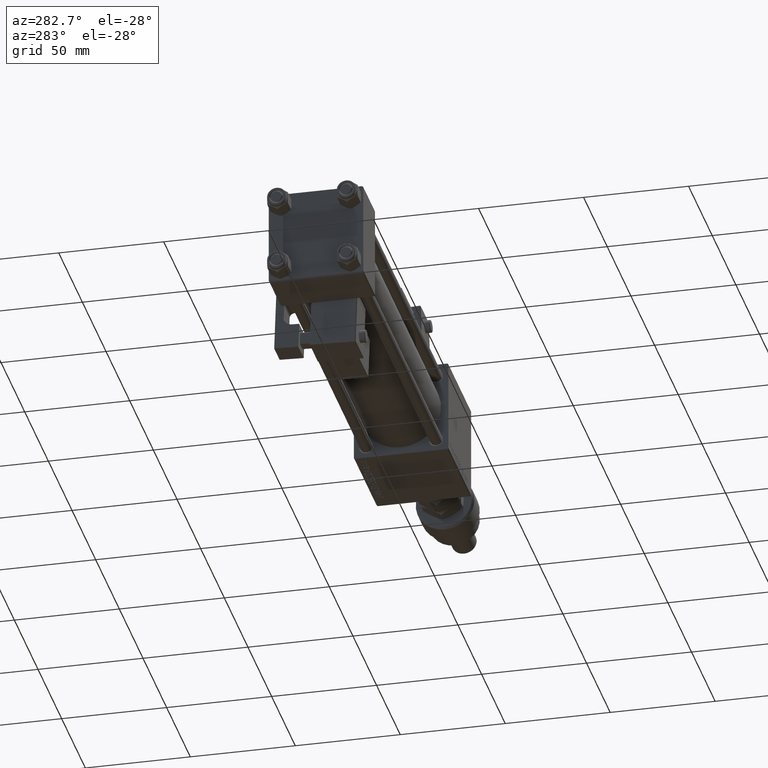
[diagram: clean part render]
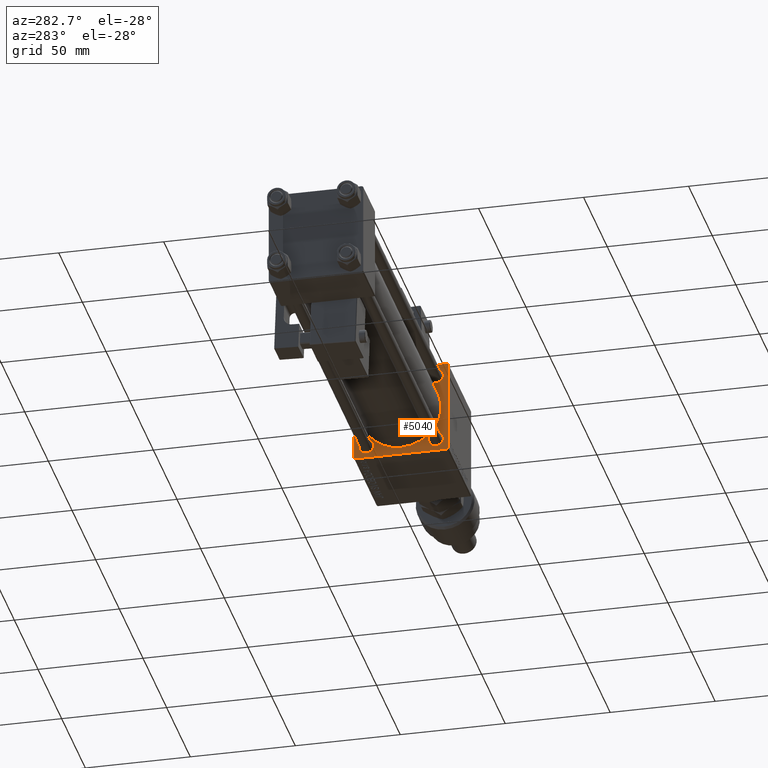
[diagram: same view with one face highlighted and labeled with its STEP entity id]
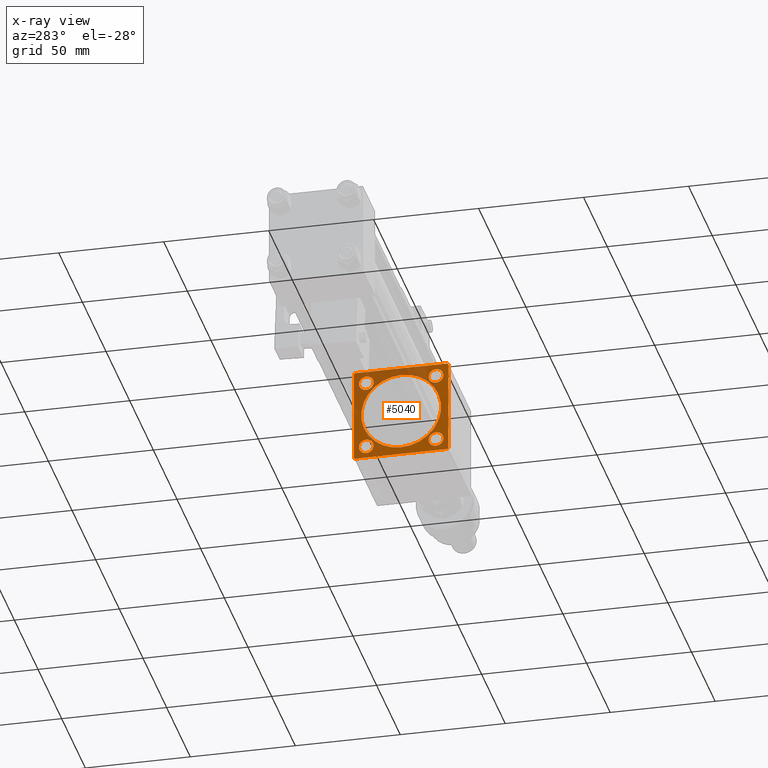
[diagram: x-ray of the same camera — body ghosted, the highlighted face saturated]
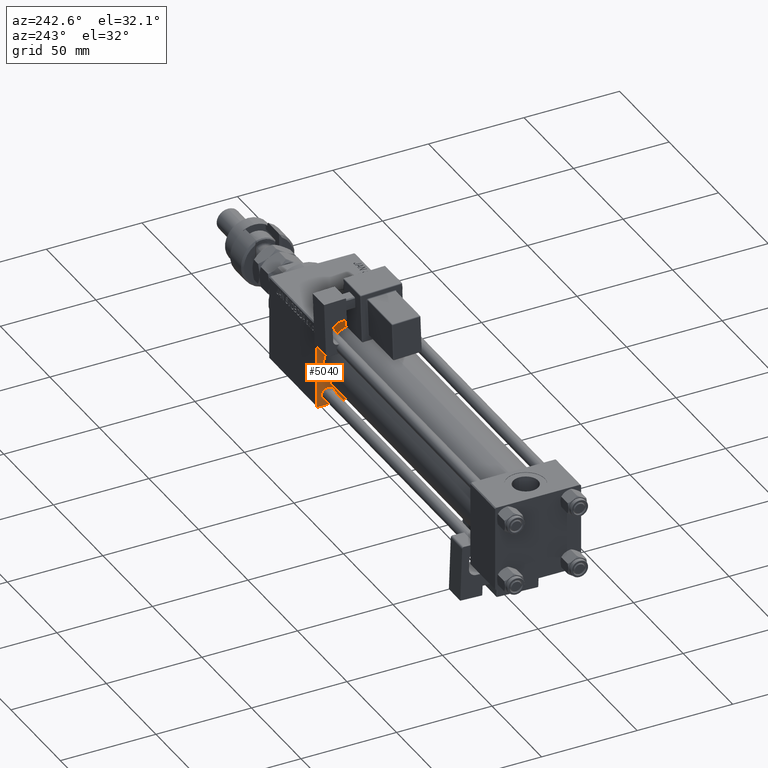
[diagram: same view with one face highlighted and labeled with its STEP entity id]
A machine part, auxiliary view. The second image highlights one B-rep face of the part: STEP entity #5040.
The next image is the same camera in x-ray: the body ghosted, the highlighted face saturated — about 32% of this face is hidden behind the body in this view.
A second angle (auxiliary view) of the same face is appended — the face is thin or edge-on in the first view.
In plain terms, the highlighted planar face has unit normal (-1, 0, 0).
Its self-contained STEP definition (entity closure, byte-faithful):
#837 = VERTEX_POINT ( 'NONE', #47481 ) ;
#1004 = DIRECTION ( 'NONE',  ( 1.000000000000000000, 0.000000000000000000, 0.000000000000000000 ) ) ;
#1467 = VERTEX_POINT ( 'NONE', #14510 ) ;
#1529 = LINE ( 'NONE', #47758, #11976 ) ;
#1689 = ORIENTED_EDGE ( 'NONE', *, *, #34323, .T. ) ;
#1752 = ORIENTED_EDGE ( 'NONE', *, *, #49059, .T. ) ;
#1995 = VERTEX_POINT ( 'NONE', #34362 ) ;
#2395 = EDGE_CURVE ( 'NONE', #2824, #28665, #21125, .T. ) ;
#2824 = VERTEX_POINT ( 'NONE', #48654 ) ;
#2867 = ORIENTED_EDGE ( 'NONE', *, *, #46456, .T. ) ;
#3119 = ORIENTED_EDGE ( 'NONE', *, *, #47294, .T. ) ;
#3136 = EDGE_CURVE ( 'NONE', #22295, #29523, #1529, .T. ) ;
#3365 = VECTOR ( 'NONE', #8071, 1000.000000000000000 ) ;
#3428 = CARTESIAN_POINT ( 'NONE',  ( 180.0000000000000000, -21.99999999999998224, 22.49999999999999289 ) ) ;
#3496 = CARTESIAN_POINT ( 'NONE',  ( 180.0000000000000000, -16.59999999999999076, 20.10000000000001918 ) ) ;
#4008 = LINE ( 'NONE', #54472, #15094 ) ;
#4336 = CARTESIAN_POINT ( 'NONE',  ( 180.0000000000000000, 16.59999999999999787, 20.10000000000001208 ) ) ;
#4366 = EDGE_CURVE ( 'NONE', #1995, #44413, #37098, .T. ) ;
#5010 = DIRECTION ( 'NONE',  ( -0.000000000000000000, 0.000000000000000000, 1.000000000000000000 ) ) ;
#5040 = ADVANCED_FACE ( 'NONE', ( #22122, #43104, #17086, #35007, #30539, #21850 ), #47580, .T. ) ;
#5211 = CIRCLE ( 'NONE', #25808, 3.500000000000010214 ) ;
#6276 = AXIS2_PLACEMENT_3D ( 'NONE', #37388, #55316, #25641 ) ;
#6429 = VERTEX_POINT ( 'NONE', #4336 ) ;
#6561 = VECTOR ( 'NONE', #55007, 1000.000000000000114 ) ;
#7341 = DIRECTION ( 'NONE',  ( 0.000000000000000000, 0.000000000000000000, 1.000000000000000000 ) ) ;
#7404 = DIRECTION ( 'NONE',  ( 0.000000000000000000, 0.7071067811865672237, -0.7071067811865279218 ) ) ;
#7834 = EDGE_CURVE ( 'NONE', #16027, #47866, #12223, .T. ) ;
#8071 = DIRECTION ( 'NONE',  ( 0.000000000000000000, 0.000000000000000000, -1.000000000000000000 ) ) ;
#8082 = DIRECTION ( 'NONE',  ( 0.000000000000000000, 0.000000000000000000, -1.000000000000000000 ) ) ;
#8225 = AXIS2_PLACEMENT_3D ( 'NONE', #28660, #28379, #7341 ) ;
#8706 = CARTESIAN_POINT ( 'NONE',  ( 180.0000000000000000, 16.59999999999999787, -16.60000000000000497 ) ) ;
#8910 = DIRECTION ( 'NONE',  ( 0.000000000000000000, -1.000000000000000000, -2.312964634635742957E-16 ) ) ;
#9143 = CIRCLE ( 'NONE', #8225, 3.500000000000010214 ) ;
#9688 = DIRECTION ( 'NONE',  ( 0.000000000000000000, 0.000000000000000000, -1.000000000000000000 ) ) ;
#9811 = VERTEX_POINT ( 'NONE', #53170 ) ;
#10265 = DIRECTION ( 'NONE',  ( 0.000000000000000000, 0.000000000000000000, -1.000000000000000000 ) ) ;
#10546 = ORIENTED_EDGE ( 'NONE', *, *, #22653, .T. ) ;
#10721 = AXIS2_PLACEMENT_3D ( 'NONE', #21285, #12590, #52058 ) ;
#11350 = CARTESIAN_POINT ( 'NONE',  ( 180.0000000000000000, 22.24999999999937828, 22.25000000000061462 ) ) ;
#11669 = LINE ( 'NONE', #25124, #24203 ) ;
#11976 = VECTOR ( 'NONE', #9688, 1000.000000000000000 ) ;
#12223 = CIRCLE ( 'NONE', #33664, 19.00000000000000000 ) ;
#12590 = DIRECTION ( 'NONE',  ( 1.000000000000000000, -0.000000000000000000, 0.000000000000000000 ) ) ;
#13136 = CARTESIAN_POINT ( 'NONE',  ( 180.0000000000000000, 22.50000000000000355, 22.50000000000000355 ) ) ;
#13504 = CARTESIAN_POINT ( 'NONE',  ( 180.0000000000000000, 16.59999999999999787, -13.09999999999999432 ) ) ;
#13841 = VERTEX_POINT ( 'NONE', #13504 ) ;
#13954 = AXIS2_PLACEMENT_3D ( 'NONE', #8706, #47065, #38929 ) ;
#13976 = ORIENTED_EDGE ( 'NONE', *, *, #2395, .T. ) ;
#14510 = CARTESIAN_POINT ( 'NONE',  ( 180.0000000000000000, 16.59999999999999787, 13.09999999999999432 ) ) ;
#15094 = VECTOR ( 'NONE', #16357, 1000.000000000000000 ) ;
#15464 = ORIENTED_EDGE ( 'NONE', *, *, #3136, .F. ) ;
#16027 = VERTEX_POINT ( 'NONE', #22408 ) ;
#16357 = DIRECTION ( 'NONE',  ( 0.000000000000000000, -1.000000000000000000, -7.709882115452476934E-17 ) ) ;
#16425 = VERTEX_POINT ( 'NONE', #3496 ) ;
#16785 = VECTOR ( 'NONE', #36753, 1000.000000000000000 ) ;
#16875 = EDGE_LOOP ( 'NONE', ( #3119, #31486, #15464, #50535, #19058, #22124, #48969, #13976 ) ) ;
#17086 = FACE_BOUND ( 'NONE', #22734, .T. ) ;
#17136 = CARTESIAN_POINT ( 'NONE',  ( 180.0000000000000000, -22.49999999999999645, 21.99999999999999289 ) ) ;
#17174 = CARTESIAN_POINT ( 'NONE',  ( 180.0000000000000000, -16.59999999999999076, -16.60000000000000853 ) ) ;
#17202 = CARTESIAN_POINT ( 'NONE',  ( 180.0000000000000000, -16.59999999999999076, -16.60000000000000853 ) ) ;
#17419 = VECTOR ( 'NONE', #7404, 1000.000000000000000 ) ;
#17606 = LINE ( 'NONE', #34709, #3365 ) ;
#17914 = CARTESIAN_POINT ( 'NONE',  ( 180.0000000000000000, -16.59999999999999076, -13.09999999999999787 ) ) ;
#18949 = CARTESIAN_POINT ( 'NONE',  ( 180.0000000000000000, -2.602085213965210642E-15, 0.000000000000000000 ) ) ;
#19058 = ORIENTED_EDGE ( 'NONE', *, *, #40778, .F. ) ;
#19255 = CARTESIAN_POINT ( 'NONE',  ( 180.0000000000000000, -16.59999999999999076, 13.09999999999999432 ) ) ;
#19271 = ORIENTED_EDGE ( 'NONE', *, *, #53375, .T. ) ;
#19291 = CIRCLE ( 'NONE', #13954, 3.500000000000010214 ) ;
#19325 = ORIENTED_EDGE ( 'NONE', *, *, #7834, .T. ) ;
#20051 = EDGE_CURVE ( 'NONE', #837, #13841, #21502, .T. ) ;
#21125 = LINE ( 'NONE', #25617, #6561 ) ;
#21285 = CARTESIAN_POINT ( 'NONE',  ( 180.0000000000000000, -16.59999999999999076, 16.60000000000000853 ) ) ;
#21502 = CIRCLE ( 'NONE', #6276, 3.500000000000010214 ) ;
#21850 = FACE_OUTER_BOUND ( 'NONE', #16875, .T. ) ;
#21903 = AXIS2_PLACEMENT_3D ( 'NONE', #30407, #52501, #51666 ) ;
#22122 = FACE_BOUND ( 'NONE', #46117, .T. ) ;
#22124 = ORIENTED_EDGE ( 'NONE', *, *, #4366, .T. ) ;
#22295 = VERTEX_POINT ( 'NONE', #17136 ) ;
#22408 = CARTESIAN_POINT ( 'NONE',  ( 180.0000000000000000, -2.752562955852396712E-16, -19.00000000000000000 ) ) ;
#22653 = EDGE_CURVE ( 'NONE', #16425, #22870, #30424, .T. ) ;
#22734 = EDGE_LOOP ( 'NONE', ( #41488, #28076 ) ) ;
#22870 = VERTEX_POINT ( 'NONE', #19255 ) ;
#23063 = VERTEX_POINT ( 'NONE', #28452 ) ;
#23344 = LINE ( 'NONE', #44325, #16785 ) ;
#23634 = CIRCLE ( 'NONE', #30809, 3.500000000000010214 ) ;
#23823 = CARTESIAN_POINT ( 'NONE',  ( 180.0000000000000000, -2.602085213965210642E-15, 19.00000000000000000 ) ) ;
#24203 = VECTOR ( 'NONE', #37140, 1000.000000000000114 ) ;
#25124 = CARTESIAN_POINT ( 'NONE',  ( 180.0000000000000000, -22.24999999999999289, 22.24999999999999289 ) ) ;
#25461 = CIRCLE ( 'NONE', #21903, 3.500000000000013323 ) ;
#25617 = CARTESIAN_POINT ( 'NONE',  ( 180.0000000000000000, 22.24999999999999645, -22.24999999999999645 ) ) ;
#25641 = DIRECTION ( 'NONE',  ( 0.000000000000000000, 0.000000000000000000, 1.000000000000000000 ) ) ;
#25808 = AXIS2_PLACEMENT_3D ( 'NONE', #27425, #49219, #36082 ) ;
#26034 = EDGE_CURVE ( 'NONE', #22295, #31831, #11669, .T. ) ;
#27425 = CARTESIAN_POINT ( 'NONE',  ( 180.0000000000000000, 16.59999999999999787, 16.60000000000000497 ) ) ;
#28076 = ORIENTED_EDGE ( 'NONE', *, *, #20051, .T. ) ;
#28379 = DIRECTION ( 'NONE',  ( 1.000000000000000000, -0.000000000000000000, 0.000000000000000000 ) ) ;
#28452 = CARTESIAN_POINT ( 'NONE',  ( 180.0000000000000000, -16.59999999999999076, -20.10000000000001563 ) ) ;
#28660 = CARTESIAN_POINT ( 'NONE',  ( 180.0000000000000000, 16.59999999999999787, 16.60000000000000497 ) ) ;
#28665 = VERTEX_POINT ( 'NONE', #38526 ) ;
#28932 = CARTESIAN_POINT ( 'NONE',  ( 180.0000000000000000, -22.49999999999999645, -21.99999999999995026 ) ) ;
#28954 = DIRECTION ( 'NONE',  ( 1.000000000000000000, -0.000000000000000000, 0.000000000000000000 ) ) ;
#29523 = VERTEX_POINT ( 'NONE', #28932 ) ;
#29559 = EDGE_CURVE ( 'NONE', #1467, #6429, #9143, .T. ) ;
#29587 = EDGE_LOOP ( 'NONE', ( #2867, #19325 ) ) ;
#30101 = DIRECTION ( 'NONE',  ( 0.000000000000000000, 0.000000000000000000, 1.000000000000000000 ) ) ;
#30407 = CARTESIAN_POINT ( 'NONE',  ( 180.0000000000000000, -16.59999999999999076, 16.60000000000000853 ) ) ;
#30424 = CIRCLE ( 'NONE', #10721, 3.500000000000013323 ) ;
#30539 = FACE_BOUND ( 'NONE', #29587, .T. ) ;
#30809 = AXIS2_PLACEMENT_3D ( 'NONE', #17202, #51353, #30101 ) ;
#31195 = ORIENTED_EDGE ( 'NONE', *, *, #55415, .T. ) ;
#31207 = AXIS2_PLACEMENT_3D ( 'NONE', #51496, #34159, #8082 ) ;
#31486 = ORIENTED_EDGE ( 'NONE', *, *, #47442, .T. ) ;
#31633 = EDGE_LOOP ( 'NONE', ( #31195, #1689 ) ) ;
#31831 = VERTEX_POINT ( 'NONE', #3428 ) ;
#32690 = CIRCLE ( 'NONE', #39817, 3.500000000000010214 ) ;
#33664 = AXIS2_PLACEMENT_3D ( 'NONE', #18949, #1004, #10265 ) ;
#34159 = DIRECTION ( 'NONE',  ( 1.000000000000000000, 0.000000000000000000, 0.000000000000000000 ) ) ;
#34323 = EDGE_CURVE ( 'NONE', #23063, #49793, #23634, .T. ) ;
#34362 = CARTESIAN_POINT ( 'NONE',  ( 180.0000000000000000, 21.99999999999997513, 22.50000000000000355 ) ) ;
#34709 = CARTESIAN_POINT ( 'NONE',  ( 180.0000000000000000, 22.50000000000000355, 22.50000000000000355 ) ) ;
#35007 = FACE_BOUND ( 'NONE', #31633, .T. ) ;
#36082 = DIRECTION ( 'NONE',  ( 0.000000000000000000, 0.000000000000000000, 1.000000000000000000 ) ) ;
#36753 = DIRECTION ( 'NONE',  ( 0.000000000000000000, -0.7071067811865426878, 0.7071067811865524577 ) ) ;
#37098 = LINE ( 'NONE', #11350, #17419 ) ;
#37140 = DIRECTION ( 'NONE',  ( -0.000000000000000000, 0.7071067811865474617, 0.7071067811865474617 ) ) ;
#37388 = CARTESIAN_POINT ( 'NONE',  ( 180.0000000000000000, 16.59999999999999787, -16.60000000000000497 ) ) ;
#38526 = CARTESIAN_POINT ( 'NONE',  ( 180.0000000000000000, 22.00000000000000355, -22.49999999999999645 ) ) ;
#38895 = DIRECTION ( 'NONE',  ( -1.000000000000000000, 0.000000000000000000, -0.000000000000000000 ) ) ;
#38929 = DIRECTION ( 'NONE',  ( 0.000000000000000000, 0.000000000000000000, 1.000000000000000000 ) ) ;
#39144 = LINE ( 'NONE', #13136, #45228 ) ;
#39817 = AXIS2_PLACEMENT_3D ( 'NONE', #17174, #28954, #46005 ) ;
#40449 = EDGE_CURVE ( 'NONE', #13841, #837, #19291, .T. ) ;
#40778 = EDGE_CURVE ( 'NONE', #1995, #31831, #39144, .T. ) ;
#41488 = ORIENTED_EDGE ( 'NONE', *, *, #40449, .T. ) ;
#43104 = FACE_BOUND ( 'NONE', #49769, .T. ) ;
#44325 = CARTESIAN_POINT ( 'NONE',  ( 180.0000000000000000, -22.25000000000013500, -22.24999999999982947 ) ) ;
#44413 = VERTEX_POINT ( 'NONE', #51698 ) ;
#45228 = VECTOR ( 'NONE', #8910, 1000.000000000000000 ) ;
#45447 = EDGE_CURVE ( 'NONE', #44413, #2824, #17606, .T. ) ;
#46005 = DIRECTION ( 'NONE',  ( 0.000000000000000000, 0.000000000000000000, 1.000000000000000000 ) ) ;
#46117 = EDGE_LOOP ( 'NONE', ( #10546, #19271 ) ) ;
#46456 = EDGE_CURVE ( 'NONE', #47866, #16027, #49952, .T. ) ;
#47031 = CARTESIAN_POINT ( 'NONE',  ( 180.0000000000000000, 0.000000000000000000, 0.000000000000000000 ) ) ;
#47065 = DIRECTION ( 'NONE',  ( 1.000000000000000000, -0.000000000000000000, 0.000000000000000000 ) ) ;
#47294 = EDGE_CURVE ( 'NONE', #28665, #9811, #4008, .T. ) ;
#47327 = ORIENTED_EDGE ( 'NONE', *, *, #29559, .T. ) ;
#47442 = EDGE_CURVE ( 'NONE', #9811, #29523, #23344, .T. ) ;
#47481 = CARTESIAN_POINT ( 'NONE',  ( 180.0000000000000000, 16.59999999999999787, -20.10000000000001208 ) ) ;
#47580 = PLANE ( 'NONE',  #54116 ) ;
#47758 = CARTESIAN_POINT ( 'NONE',  ( 180.0000000000000000, -22.49999999999999645, 22.49999999999999289 ) ) ;
#47866 = VERTEX_POINT ( 'NONE', #23823 ) ;
#48654 = CARTESIAN_POINT ( 'NONE',  ( 180.0000000000000000, 22.50000000000000355, -21.99999999999998224 ) ) ;
#48969 = ORIENTED_EDGE ( 'NONE', *, *, #45447, .T. ) ;
#49059 = EDGE_CURVE ( 'NONE', #6429, #1467, #5211, .T. ) ;
#49219 = DIRECTION ( 'NONE',  ( 1.000000000000000000, -0.000000000000000000, 0.000000000000000000 ) ) ;
#49769 = EDGE_LOOP ( 'NONE', ( #1752, #47327 ) ) ;
#49793 = VERTEX_POINT ( 'NONE', #17914 ) ;
#49952 = CIRCLE ( 'NONE', #31207, 19.00000000000000000 ) ;
#50535 = ORIENTED_EDGE ( 'NONE', *, *, #26034, .T. ) ;
#51353 = DIRECTION ( 'NONE',  ( 1.000000000000000000, -0.000000000000000000, 0.000000000000000000 ) ) ;
#51496 = CARTESIAN_POINT ( 'NONE',  ( 180.0000000000000000, -2.602085213965210642E-15, 0.000000000000000000 ) ) ;
#51666 = DIRECTION ( 'NONE',  ( 0.000000000000000000, 0.000000000000000000, 1.000000000000000000 ) ) ;
#51698 = CARTESIAN_POINT ( 'NONE',  ( 180.0000000000000000, 22.50000000000000355, 22.00000000000000355 ) ) ;
#52058 = DIRECTION ( 'NONE',  ( 0.000000000000000000, 0.000000000000000000, 1.000000000000000000 ) ) ;
#52501 = DIRECTION ( 'NONE',  ( 1.000000000000000000, -0.000000000000000000, 0.000000000000000000 ) ) ;
#53170 = CARTESIAN_POINT ( 'NONE',  ( 180.0000000000000000, -21.99999999999995381, -22.50000000000000000 ) ) ;
#53375 = EDGE_CURVE ( 'NONE', #22870, #16425, #25461, .T. ) ;
#54116 = AXIS2_PLACEMENT_3D ( 'NONE', #47031, #38895, #5010 ) ;
#54472 = CARTESIAN_POINT ( 'NONE',  ( 180.0000000000000000, 22.50000000000000355, -22.49999999999999645 ) ) ;
#55007 = DIRECTION ( 'NONE',  ( -0.000000000000000000, -0.7071067811865474617, -0.7071067811865474617 ) ) ;
#55316 = DIRECTION ( 'NONE',  ( 1.000000000000000000, -0.000000000000000000, 0.000000000000000000 ) ) ;
#55415 = EDGE_CURVE ( 'NONE', #49793, #23063, #32690, .T. ) ;